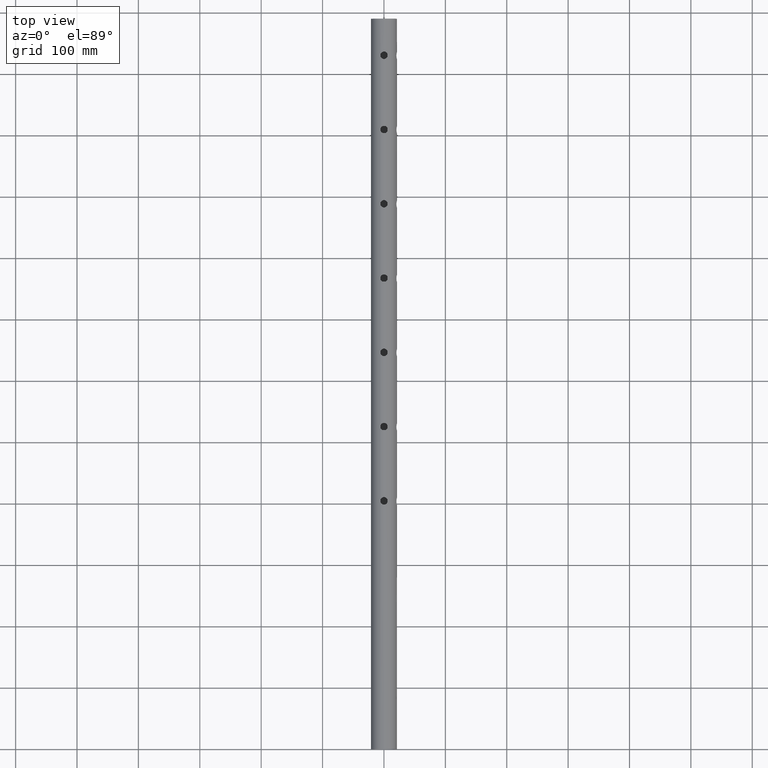
[diagram: clean part render]
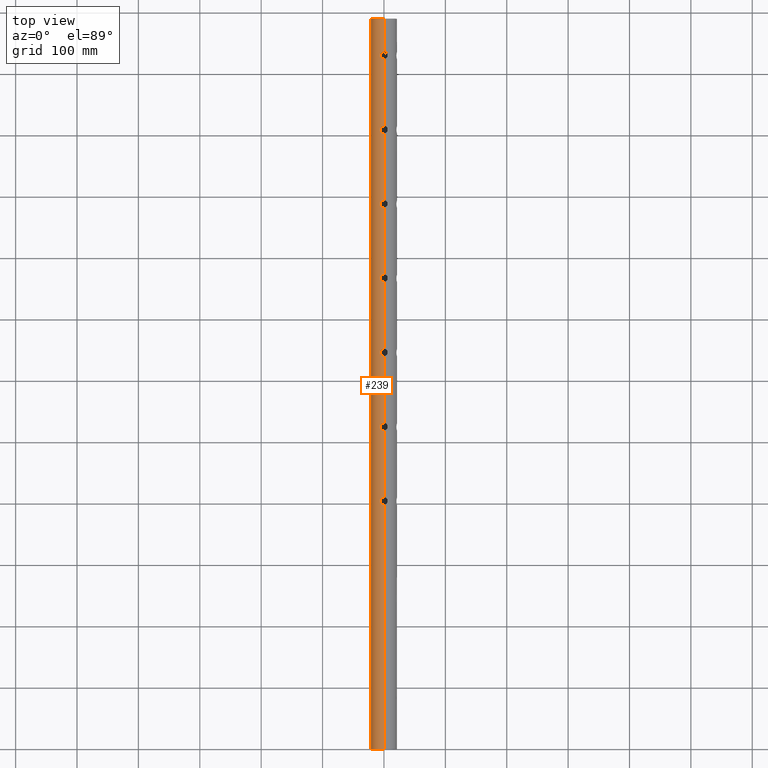
[diagram: same view with one face highlighted and labeled with its STEP entity id]
A machine part, top view. The second image highlights one B-rep face of the part: STEP entity #239.
In plain terms, the highlighted cylindrical surface (edge-blend (fillet) strip) has radius 21.2 mm, axis along (-0, -1, -0).
Its self-contained STEP definition (entity closure, byte-faithful):
#8 = CARTESIAN_POINT ( 'NONE',  ( -3.530176348994277500, 1125.082743648915300, 20.90467695328665300 ) ) ;
#140 = CARTESIAN_POINT ( 'NONE',  ( -5.435294836957286400, 1127.313770727537100, 20.49200384173441200 ) ) ;
#162 = DIRECTION ( 'NONE',  ( -0.0000000000000000000, -1.000000000000000000, -0.0000000000000000000 ) ) ;
#185 = ORIENTED_EDGE ( 'NONE', *, *, #6876, .F. ) ;
#195 = VECTOR ( 'NONE', #9802, 1000.000000000000000 ) ;
#239 = ADVANCED_FACE ( 'NONE', ( #8901 ), #9555, .T. ) ;
#263 = CARTESIAN_POINT ( 'NONE',  ( -2.691164969478768500, 640.5671309157854700, 21.03169333427418400 ) ) ;
#319 = CARTESIAN_POINT ( 'NONE',  ( -3.530176348994261500, 641.0827436489153100, 20.90467695328665300 ) ) ;
#333 = CARTESIAN_POINT ( 'NONE',  ( -5.854683426165408400, 647.5752423035781900, 20.37570154653993300 ) ) ;
#462 = CARTESIAN_POINT ( 'NONE',  ( -3.530176348994277500, 1004.082743648915100, 20.90467695328665300 ) ) ;
#465 = LINE ( 'NONE', #1345, #1800 ) ;
#472 = EDGE_CURVE ( 'NONE', #8128, #1700, #13308, .T. ) ;
#521 = CARTESIAN_POINT ( 'NONE',  ( -4.416944519459525200, 771.1390867482692800, 20.73525746203517200 ) ) ;
#561 = EDGE_CURVE ( 'NONE', #6840, #10485, #5732, .T. ) ;
#565 = CARTESIAN_POINT ( 'NONE',  ( -3.695088032338519600, 529.8066926974905800, 20.87813220728821800 ) ) ;
#573 = CARTESIAN_POINT ( 'NONE',  ( -5.246287615906199500, 770.0385967786834300, 20.54183477648132300 ) ) ;
#578 = CARTESIAN_POINT ( 'NONE',  ( 2.596223314720527500E-015, 894.0499999999999500, 21.19999999999999900 ) ) ;
#585 = CARTESIAN_POINT ( 'NONE',  ( -6.050000000000026500, 403.9999999999998900, 20.31840298842406200 ) ) ;
#622 = CARTESIAN_POINT ( 'NONE',  ( -1.575983268988505200, 519.1453954084810200, 21.14493573380449800 ) ) ;
#624 = CARTESIAN_POINT ( 'NONE',  ( -1.575983268988464300, 398.1453954084810800, 21.14493573380450500 ) ) ;
#654 = CARTESIAN_POINT ( 'NONE',  ( -5.432916495109355800, 527.6917528548796100, 20.49264998027320700 ) ) ;
#659 = VERTEX_POINT ( 'NONE', #10831 ) ;
#660 = EDGE_CURVE ( 'NONE', #2346, #1747, #7364, .T. ) ;
#695 = VECTOR ( 'NONE', #5621, 1000.000000000000000 ) ;
#696 = CARTESIAN_POINT ( 'NONE',  ( -6.000470935930653800, 525.7978770793316700, 20.33309551277983100 ) ) ;
#739 = CARTESIAN_POINT ( 'NONE',  ( -5.249504339499884200, 763.9663222723781900, 20.54104344939931800 ) ) ;
#744 = CARTESIAN_POINT ( 'NONE',  ( -4.918790398416851100, 528.5279635839250400, 20.62178771226464500 ) ) ;
#773 = CARTESIAN_POINT ( 'NONE',  ( -1.962128639602877600, 882.2634081040379200, 21.11218947910312200 ) ) ;
#802 = CARTESIAN_POINT ( 'NONE',  ( -6.039985286317763900, 1130.401044919848300, 20.32139272603728500 ) ) ;
#825 = CARTESIAN_POINT ( 'NONE',  ( -4.141040262045609500, 883.5849413298466300, 20.79210945660207700 ) ) ;
#831 = CARTESIAN_POINT ( 'NONE',  ( -4.141040262045609500, 762.5849413298468600, 20.79210945660207700 ) ) ;
#852 = CARTESIAN_POINT ( 'NONE',  ( -3.039946777223664100, 1135.245635695174500, 20.98353648990999800 ) ) ;
#872 = CARTESIAN_POINT ( 'NONE',  ( -4.801635101803243300, 1012.685894702153100, 20.64947484371207400 ) ) ;
#874 = CARTESIAN_POINT ( 'NONE',  ( -2.691164969478768500, 761.5671309157854700, 21.03169333427418400 ) ) ;
#933 = CARTESIAN_POINT ( 'NONE',  ( -3.039946777223722300, 893.2456356951744300, 20.98353648990999100 ) ) ;
#1028 = CARTESIAN_POINT ( 'NONE',  ( -6.050000000000026500, 645.9999999999997700, 20.31840298842406500 ) ) ;
#1030 = CARTESIAN_POINT ( 'NONE',  ( 2.596223314720527500E-015, 410.0499999999999000, 21.19999999999999900 ) ) ;
#1032 = CARTESIAN_POINT ( 'NONE',  ( -4.556882320858635500, 1126.001105957273500, 20.70639862319530200 ) ) ;
#1038 = CARTESIAN_POINT ( 'NONE',  ( 2.596251214192388800E-015, 1190.000000000000000, 21.19999999999999900 ) ) ;
#1130 = ORIENTED_EDGE ( 'NONE', *, *, #10537, .F. ) ;
#1175 = CARTESIAN_POINT ( 'NONE',  ( -5.855829506274325500, 1128.428586027691200, 20.37537209464103300 ) ) ;
#1215 = CARTESIAN_POINT ( 'NONE',  ( -1.962128639602954000, 1124.263408104038000, 21.11218947910313700 ) ) ;
#1309 = CARTESIAN_POINT ( 'NONE',  ( -0.7973842761982444800, 639.9896508834147000, 21.18858675718902200 ) ) ;
#1345 = CARTESIAN_POINT ( 'NONE',  ( 2.596251214192388800E-015, 1190.000000000000000, 21.19999999999999900 ) ) ;
#1350 = CARTESIAN_POINT ( 'NONE',  ( -6.039985286317761200, 404.4010449198484600, 20.32139272603728100 ) ) ;
#1404 = CARTESIAN_POINT ( 'NONE',  ( -3.995559808259872400, 641.4528021853143400, 20.82065224352272600 ) ) ;
#1447 = EDGE_CURVE ( 'NONE', #6904, #5822, #12035, .T. ) ;
#1452 = CARTESIAN_POINT ( 'NONE',  ( -5.738210485053230100, 644.0426553450870400, 20.40925260374660500 ) ) ;
#1488 = EDGE_CURVE ( 'NONE', #8061, #11822, #6049, .T. ) ;
#1496 = CARTESIAN_POINT ( 'NONE',  ( -0.4018420492009751000, 639.9499999999999300, 21.19999999999999600 ) ) ;
#1510 = CARTESIAN_POINT ( 'NONE',  ( -4.141040262045537500, 1004.584941329846400, 20.79210945660209800 ) ) ;
#1519 = CARTESIAN_POINT ( 'NONE',  ( -1.578362020633712600, 772.8542087607759200, 21.14482399937956500 ) ) ;
#1556 = CARTESIAN_POINT ( 'NONE',  ( -0.3960930939026379700, 773.0499999999997300, 21.19999999999999600 ) ) ;
#1578 = CARTESIAN_POINT ( 'NONE',  ( -6.050000000000026500, 887.9999999999997700, 20.31840298842406500 ) ) ;
#1594 = CARTESIAN_POINT ( 'NONE',  ( -4.918790398416851100, 770.5279635839249300, 20.62178771226464500 ) ) ;
#1615 = VERTEX_POINT ( 'NONE', #4172 ) ;
#1647 = CARTESIAN_POINT ( 'NONE',  ( -0.7973842761982444800, 518.9896508834145800, 21.18858675718902200 ) ) ;
#1700 = VERTEX_POINT ( 'NONE', #2402 ) ;
#1720 = CARTESIAN_POINT ( 'NONE',  ( -3.039946777223722300, 530.2456356951746600, 20.98353648990999100 ) ) ;
#1747 = VERTEX_POINT ( 'NONE', #7472 ) ;
#1762 = CARTESIAN_POINT ( 'NONE',  ( -6.050000000000026500, 766.9999999999997700, 20.31840298842406500 ) ) ;
#1784 = CARTESIAN_POINT ( 'NONE',  ( -4.556882320858705700, 521.0011059572732400, 20.70639862319529800 ) ) ;
#1786 = CARTESIAN_POINT ( 'NONE',  ( -1.956693228108754800, 1135.738442409943400, 21.11269495595366400 ) ) ;
#1800 = VECTOR ( 'NONE', #162, 1000.000000000000000 ) ;
#1810 = CARTESIAN_POINT ( 'NONE',  ( -6.049999999999978500, 887.6012173861108700, 20.31840298842407600 ) ) ;
#1817 = CARTESIAN_POINT ( 'NONE',  ( -4.807465143467418900, 763.3055751110839500, 20.64897190406545800 ) ) ;
#1822 = CARTESIAN_POINT ( 'NONE',  ( -6.050000000000026500, 524.9999999999997700, 20.31840298842406500 ) ) ;
#1833 = CARTESIAN_POINT ( 'NONE',  ( -5.854683426165408400, 768.5752423035783100, 20.37570154653993300 ) ) ;
#1844 = B_SPLINE_CURVE_WITH_KNOTS ( 'NONE', 3,
 ( #5909, #6962, #4033, #1924, #1786, #11358, #852, #7228, #9229, #12464, #4997, #3937, #6081, #9281, #2912, #10374, #3981, #8290, #13571, #802, #11487, #5092 ),
 .UNSPECIFIED., .F., .F.,
 ( 4, 2, 2, 2, 2, 2, 2, 2, 2, 2, 4 ),
 ( 0.01901438074518129900, 0.02020257086482991200, 0.02139076098447852500, 0.02257895110412713700, 0.02376714122377575000, 0.02436123628360005500, 0.02495533134342435900, 0.02614352146307296800, 0.02733171158272158100, 0.02792580664254588500, 0.02851990170237019000 ),
 .UNSPECIFIED. ) ;
#1860 = ORIENTED_EDGE ( 'NONE', *, *, #4938, .F. ) ;
#1880 = ORIENTED_EDGE ( 'NONE', *, *, #8201, .F. ) ;
#1924 = CARTESIAN_POINT ( 'NONE',  ( -1.578362020633681300, 1135.854208760776100, 21.14482399937957200 ) ) ;
#1951 = CARTESIAN_POINT ( 'NONE',  ( -5.739701135709182700, 1010.953956485524600, 20.40884895650809500 ) ) ;
#1968 = CARTESIAN_POINT ( 'NONE',  ( -0.3960930939026379700, 894.0499999999999500, 21.19999999999999600 ) ) ;
#2021 = CARTESIAN_POINT ( 'NONE',  ( -6.049999999999985600, 646.1994294887807700, 20.31840298842406900 ) ) ;
#2023 = DIRECTION ( 'NONE',  ( 0.0000000000000000000, 1.000000000000000000, 0.0000000000000000000 ) ) ;
#2024 = CARTESIAN_POINT ( 'NONE',  ( -5.971067428228664700, 888.9939342792388300, 20.34177933837445100 ) ) ;
#2067 = CARTESIAN_POINT ( 'NONE',  ( -5.854683426165408400, 889.5752423035784200, 20.37570154653993300 ) ) ;
#2094 = CARTESIAN_POINT ( 'NONE',  ( -5.460655415923692100E-014, 1002.950000000000000, 21.19999999999999900 ) ) ;
#2107 = CARTESIAN_POINT ( 'NONE',  ( -6.039985286317756800, 888.4010449198484600, 20.32139272603728100 ) ) ;
#2109 = CARTESIAN_POINT ( 'NONE',  ( -0.4018420492009687800, 1123.950000000000300, 21.19999999999999900 ) ) ;
#2162 = CARTESIAN_POINT ( 'NONE',  ( -4.550975023963515800, 649.9912586658209600, 20.70616181969095500 ) ) ;
#2256 = EDGE_CURVE ( 'NONE', #9644, #6904, #12184, .T. ) ;
#2284 = DIRECTION ( 'NONE',  ( -0.0000000000000000000, -1.000000000000000000, -0.0000000000000000000 ) ) ;
#2316 = ORIENTED_EDGE ( 'NONE', *, *, #2646, .F. ) ;
#2333 = ORIENTED_EDGE ( 'NONE', *, *, #660, .F. ) ;
#2346 = VERTEX_POINT ( 'NONE', #4131 ) ;
#2402 = CARTESIAN_POINT ( 'NONE',  ( 1.017599410026512000E-015, 518.9499999999999300, 21.19999999999999900 ) ) ;
#2428 = CARTESIAN_POINT ( 'NONE',  ( -4.141040262045609500, 641.5849413298465200, 20.79210945660207700 ) ) ;
#2459 = CARTESIAN_POINT ( 'NONE',  ( -6.000470935930661800, 404.7978770793316100, 20.33309551277983500 ) ) ;
#2504 = CARTESIAN_POINT ( 'NONE',  ( -4.918790398416892800, 407.5279635839249900, 20.62178771226464500 ) ) ;
#2572 = CARTESIAN_POINT ( 'NONE',  ( -3.690486255587968100, 1004.201894400434500, 20.87688600400945300 ) ) ;
#2585 = VERTEX_POINT ( 'NONE', #2666 ) ;
#2593 = DIRECTION ( 'NONE',  ( 0.0000000000000000000, 0.0000000000000000000, -1.000000000000000000 ) ) ;
#2619 = CARTESIAN_POINT ( 'NONE',  ( -6.000470935930653800, 646.7978770793315600, 20.33309551277983100 ) ) ;
#2625 = CARTESIAN_POINT ( 'NONE',  ( -0.7926788128932649200, 773.0112101262986900, 21.18882887118840600 ) ) ;
#2646 = EDGE_CURVE ( 'NONE', #1747, #8128, #7304, .T. ) ;
#2665 = CARTESIAN_POINT ( 'NONE',  ( -2.691164969478831100, 1003.567130915785700, 21.03169333427417300 ) ) ;
#2666 = CARTESIAN_POINT ( 'NONE',  ( 2.596223314720527500E-015, 652.0499999999999500, 21.19999999999999900 ) ) ;
#2680 = CARTESIAN_POINT ( 'NONE',  ( -6.050000000000026500, 524.9999999999997700, 20.31840298842406500 ) ) ;
#2714 = CARTESIAN_POINT ( 'NONE',  ( -0.7926788128932649200, 531.0112101262985800, 21.18882887118840600 ) ) ;
#2748 = CARTESIAN_POINT ( 'NONE',  ( 0.0000000000000000000, 1190.000000000000000, 0.0000000000000000000 ) ) ;
#2793 = CARTESIAN_POINT ( 'NONE',  ( -3.690486255588049300, 883.2018944004348700, 20.87688600400944900 ) ) ;
#2803 = CARTESIAN_POINT ( 'NONE',  ( -5.971067428228664700, 525.9939342792387200, 20.34177933837445100 ) ) ;
#2812 = LINE ( 'NONE', #8263, #13171 ) ;
#2841 = CARTESIAN_POINT ( 'NONE',  ( -5.249504339499884200, 884.9663222723780800, 20.54104344939931800 ) ) ;
#2865 = CARTESIAN_POINT ( 'NONE',  ( -3.530176348994261500, 520.0827436489153100, 20.90467695328665300 ) ) ;
#2868 = CARTESIAN_POINT ( 'NONE',  ( 1.017599410026512000E-015, 881.9499999999999300, 21.19999999999999900 ) ) ;
#2912 = CARTESIAN_POINT ( 'NONE',  ( -5.432916495109359400, 1132.691752854880000, 20.49264998027321400 ) ) ;
#2945 = LINE ( 'NONE', #6131, #5965 ) ;
#2946 = CARTESIAN_POINT ( 'NONE',  ( -5.432916495109355800, 769.6917528548797200, 20.49264998027320700 ) ) ;
#3004 = CARTESIAN_POINT ( 'NONE',  ( -0.3960930939026398600, 410.0499999999999500, 21.20000000000000300 ) ) ;
#3043 = CARTESIAN_POINT ( 'NONE',  ( -6.000470935930653800, 888.7978770793314400, 20.33309551277983100 ) ) ;
#3074 = CARTESIAN_POINT ( 'NONE',  ( -3.037534517596386600, 761.7528956210558100, 20.98389950317865500 ) ) ;
#3088 = CARTESIAN_POINT ( 'NONE',  ( -6.050000000000026500, 887.9999999999997700, 20.31840298842406500 ) ) ;
#3167 = EDGE_CURVE ( 'NONE', #13727, #7425, #2812, .T. ) ;
#3215 = CARTESIAN_POINT ( 'NONE',  ( -0.7973842761982444800, 760.9896508834144700, 21.18858675718902200 ) ) ;
#3275 = CARTESIAN_POINT ( 'NONE',  ( -6.010954212363925500, 1129.207213436173300, 20.33014895809900200 ) ) ;
#3391 = LINE ( 'NONE', #6725, #11560 ) ;
#3405 = CARTESIAN_POINT ( 'NONE',  ( -5.249504339499884200, 642.9663222723780800, 20.54104344939931800 ) ) ;
#3425 = CARTESIAN_POINT ( 'NONE',  ( -4.141040262045574000, 399.5849413298468000, 20.79210945660208400 ) ) ;
#3448 = CARTESIAN_POINT ( 'NONE',  ( -6.049999999999978500, 645.6012173861111000, 20.31840298842407600 ) ) ;
#3461 = CARTESIAN_POINT ( 'NONE',  ( -4.918790398416851100, 649.5279635839249300, 20.62178771226464500 ) ) ;
#3506 = DIRECTION ( 'NONE',  ( -0.0000000000000000000, -1.000000000000000000, -0.0000000000000000000 ) ) ;
#3548 = CARTESIAN_POINT ( 'NONE',  ( -1.962128639602877600, 640.2634081040380400, 21.11218947910312200 ) ) ;
#3584 = CARTESIAN_POINT ( 'NONE',  ( -6.050000000000026500, 403.9999999999998900, 20.31840298842406200 ) ) ;
#3609 = CARTESIAN_POINT ( 'NONE',  ( -6.010954212363925500, 1008.207213436173200, 20.33014895809900200 ) ) ;
#3663 = ORIENTED_EDGE ( 'NONE', *, *, #4318, .F. ) ;
#3706 = CARTESIAN_POINT ( 'NONE',  ( -2.685867363320191700, 772.4354839883693600, 21.03237155431430900 ) ) ;
#3711 = CARTESIAN_POINT ( 'NONE',  ( -1.962128639602841700, 398.2634081040382600, 21.11218947910313300 ) ) ;
#3750 = CARTESIAN_POINT ( 'NONE',  ( -4.807465143467418900, 521.3055751110839500, 20.64897190406545800 ) ) ;
#3784 = CARTESIAN_POINT ( 'NONE',  ( -5.246287615906199500, 528.0385967786833100, 20.54183477648132300 ) ) ;
#3789 = VERTEX_POINT ( 'NONE', #8331 ) ;
#3870 = CARTESIAN_POINT ( 'NONE',  ( -5.435294836957286400, 885.3137707275371900, 20.49200384173441200 ) ) ;
#3883 = CARTESIAN_POINT ( 'NONE',  ( -5.971067428228664700, 767.9939342792387200, 20.34177933837445100 ) ) ;
#3913 = CIRCLE ( 'NONE', #6978, 21.19999999999999900 ) ;
#3919 = CARTESIAN_POINT ( 'NONE',  ( -5.738210485053230100, 765.0426553450869300, 20.40925260374660500 ) ) ;
#3937 = CARTESIAN_POINT ( 'NONE',  ( -4.801635101803243300, 1133.685894702153100, 20.64947484371207400 ) ) ;
#3981 = CARTESIAN_POINT ( 'NONE',  ( -5.854683426165435900, 1131.575242303577900, 20.37570154653992200 ) ) ;
#4033 = CARTESIAN_POINT ( 'NONE',  ( -0.7926788128932325000, 1136.011210126298200, 21.18882887118840600 ) ) ;
#4068 = B_SPLINE_CURVE_WITH_KNOTS ( 'NONE', 3,
 ( #11461, #1810, #8220, #6140, #5018, #3870, #2841, #10441, #11420, #825, #13506, #2793, #6100, #7107, #9250, #773, #12393, #13548, #12436, #8179 ),
 .UNSPECIFIED., .F., .F.,
 ( 4, 2, 2, 2, 2, 2, 2, 2, 2, 4 ),
 ( 0.02851990170237044000, 0.02970786433669814900, 0.03089582697102585800, 0.03208378960535356700, 0.03327175223968127600, 0.03386573355684524600, 0.03445971487400921500, 0.03564767750833715300, 0.03683564014266509100, 0.03802360277699302900 ),
 .UNSPECIFIED. ) ;
#4091 = CARTESIAN_POINT ( 'NONE',  ( 2.596223311817519400E-015, 1015.049999999999800, 21.19999999999999900 ) ) ;
#4094 = CARTESIAN_POINT ( 'NONE',  ( 1.017599410026512000E-015, 760.9499999999999300, 21.19999999999999900 ) ) ;
#4131 = CARTESIAN_POINT ( 'NONE',  ( 1.017599410026512000E-015, 639.9499999999999300, 21.19999999999999900 ) ) ;
#4155 = CARTESIAN_POINT ( 'NONE',  ( -5.739701135709177400, 889.9539564855246000, 20.40884895650809100 ) ) ;
#4172 = CARTESIAN_POINT ( 'NONE',  ( 2.596251214192388800E-015, 1190.000000000000000, 21.19999999999999900 ) ) ;
#4199 = CARTESIAN_POINT ( 'NONE',  ( -3.695088032338519600, 892.8066926974903500, 20.87813220728821800 ) ) ;
#4318 = EDGE_CURVE ( 'NONE', #10733, #13727, #7819, .T. ) ;
#4343 = CARTESIAN_POINT ( 'NONE',  ( -2.691164969478831100, 1124.567130915785800, 21.03169333427417300 ) ) ;
#4430 = EDGE_LOOP ( 'NONE', ( #5657, #7576, #7858, #12914, #13153, #185, #11520, #1880, #4935, #2316, #2333, #11976, #1130, #6951, #13337, #1860, #11939, #12461, #8386, #8965, #8389, #7737, #12580, #3663, #5795 ) ) ;
#4469 = CARTESIAN_POINT ( 'NONE',  ( -6.050000000000026500, 645.9999999999997700, 20.31840298842406500 ) ) ;
#4548 = CARTESIAN_POINT ( 'NONE',  ( -5.971067428228684200, 404.9939342792387700, 20.34177933837445800 ) ) ;
#4629 = CARTESIAN_POINT ( 'NONE',  ( -4.807465143467372700, 400.3055751110836700, 20.64897190406546200 ) ) ;
#4756 = CARTESIAN_POINT ( 'NONE',  ( -3.039946777223722300, 772.2456356951746600, 20.98353648990999100 ) ) ;
#4877 = VERTEX_POINT ( 'NONE', #11256 ) ;
#4885 = CARTESIAN_POINT ( 'NONE',  ( -3.998291510288320500, 529.5576218567899800, 20.82150015292442200 ) ) ;
#4935 = ORIENTED_EDGE ( 'NONE', *, *, #472, .F. ) ;
#4938 = EDGE_CURVE ( 'NONE', #11492, #3789, #6373, .T. ) ;
#4975 = CARTESIAN_POINT ( 'NONE',  ( -6.000470935930668000, 1009.797877079331200, 20.33309551277982400 ) ) ;
#4983 = CARTESIAN_POINT ( 'NONE',  ( -2.685867363320191700, 530.4354839883692400, 21.03237155431430900 ) ) ;
#4997 = CARTESIAN_POINT ( 'NONE',  ( -4.550975023963519400, 1133.991258665820900, 20.70616181969095500 ) ) ;
#5018 = CARTESIAN_POINT ( 'NONE',  ( -5.738210485053230100, 886.0426553450869300, 20.40925260374660500 ) ) ;
#5024 = CARTESIAN_POINT ( 'NONE',  ( 2.596251214192388800E-015, 1190.000000000000000, 21.19999999999999900 ) ) ;
#5063 = CARTESIAN_POINT ( 'NONE',  ( 2.596223314720527500E-015, 773.0499999999999500, 21.19999999999999900 ) ) ;
#5064 = CARTESIAN_POINT ( 'NONE',  ( -4.416944519459541100, 1013.139086748269300, 20.73525746203516500 ) ) ;
#5092 = CARTESIAN_POINT ( 'NONE',  ( -6.050000000000026500, 1130.000000000000000, 20.31840298842406200 ) ) ;
#5115 = CARTESIAN_POINT ( 'NONE',  ( -1.956693228108754800, 1014.738442409943200, 21.11269495595366400 ) ) ;
#5165 = CARTESIAN_POINT ( 'NONE',  ( -5.432916495109359400, 1011.691752854879800, 20.49264998027321400 ) ) ;
#5186 = CARTESIAN_POINT ( 'NONE',  ( -5.432916495109355800, 890.6917528548796100, 20.49264998027320700 ) ) ;
#5220 = CARTESIAN_POINT ( 'NONE',  ( -1.575983268988505200, 761.1453954084811400, 21.14493573380449800 ) ) ;
#5236 = CARTESIAN_POINT ( 'NONE',  ( -1.956693228108747000, 409.7384424099435000, 21.11269495595366400 ) ) ;
#5285 = CARTESIAN_POINT ( 'NONE',  ( -4.416944519459525200, 892.1390867482695100, 20.73525746203517200 ) ) ;
#5308 = VERTEX_POINT ( 'NONE', #7872 ) ;
#5366 = DIRECTION ( 'NONE',  ( -0.0000000000000000000, -1.000000000000000000, -0.0000000000000000000 ) ) ;
#5390 = CARTESIAN_POINT ( 'NONE',  ( -4.807465143467353200, 1126.305575111084000, 20.64897190406547300 ) ) ;
#5568 = CARTESIAN_POINT ( 'NONE',  ( -3.690486255588049300, 641.2018944004347500, 20.87688600400944900 ) ) ;
#5592 = CARTESIAN_POINT ( 'NONE',  ( -5.738210485053228300, 402.0426553450869800, 20.40925260374660500 ) ) ;
#5616 = B_SPLINE_CURVE_WITH_KNOTS ( 'NONE', 3,
 ( #5769, #11110, #3609, #12094, #8910, #13223, #6825, #6869, #7880, #1510, #8950, #2572, #462, #5978, #2665, #10220, #11247, #12312, #7035, #10128 ),
 .UNSPECIFIED., .F., .F.,
 ( 4, 2, 2, 2, 2, 2, 2, 2, 2, 4 ),
 ( 0.02851990170237019000, 0.02970786433669800300, 0.03089582697102581700, 0.03208378960535363000, 0.03327175223968144300, 0.03386573355684535000, 0.03445971487400925600, 0.03564767750833706900, 0.03683564014266488300, 0.03802360277699269600 ),
 .UNSPECIFIED. ) ;
#5621 = DIRECTION ( 'NONE',  ( -0.0000000000000000000, -1.000000000000000000, -0.0000000000000000000 ) ) ;
#5657 = ORIENTED_EDGE ( 'NONE', *, *, #13440, .F. ) ;
#5665 = CARTESIAN_POINT ( 'NONE',  ( -5.855829506274332600, 644.4285860276912700, 20.37537209464102300 ) ) ;
#5702 = CARTESIAN_POINT ( 'NONE',  ( -4.801635101803206000, 407.6858947021535200, 20.64947484371208800 ) ) ;
#5707 = LINE ( 'NONE', #10424, #10024 ) ;
#5732 = LINE ( 'NONE', #1038, #195 ) ;
#5756 = EDGE_CURVE ( 'NONE', #10590, #2346, #12111, .T. ) ;
#5760 = CARTESIAN_POINT ( 'NONE',  ( -6.050000000000026500, 1130.000000000000000, 20.31840298842406200 ) ) ;
#5769 = CARTESIAN_POINT ( 'NONE',  ( -6.050000000000026500, 1008.999999999999900, 20.31840298842406200 ) ) ;
#5781 = CARTESIAN_POINT ( 'NONE',  ( -5.855829506274334400, 402.4285860276913800, 20.37537209464103000 ) ) ;
#5795 = ORIENTED_EDGE ( 'NONE', *, *, #6953, .F. ) ;
#5822 = VERTEX_POINT ( 'NONE', #1578 ) ;
#5869 = EDGE_CURVE ( 'NONE', #5822, #8306, #4068, .T. ) ;
#5906 = CARTESIAN_POINT ( 'NONE',  ( -3.995559808259872400, 520.4528021853144500, 20.82065224352272600 ) ) ;
#5909 = CARTESIAN_POINT ( 'NONE',  ( 2.596223311817519400E-015, 1136.049999999999700, 21.19999999999999900 ) ) ;
#5965 = VECTOR ( 'NONE', #9236, 1000.000000000000000 ) ;
#5978 = CARTESIAN_POINT ( 'NONE',  ( -3.037534517596409700, 1003.752895621055900, 20.98389950317865500 ) ) ;
#5993 = CARTESIAN_POINT ( 'NONE',  ( -5.855829506274332600, 523.4285860276912700, 20.37537209464102300 ) ) ;
#5999 = CARTESIAN_POINT ( 'NONE',  ( -3.039946777223722300, 651.2456356951745400, 20.98353648990999100 ) ) ;
#6031 = CARTESIAN_POINT ( 'NONE',  ( -1.578362020633712600, 530.8542087607756900, 21.14482399937956500 ) ) ;
#6049 = B_SPLINE_CURVE_WITH_KNOTS ( 'NONE', 3,
 ( #1030, #3004, #6208, #10640, #5236, #6167, #13665, #12661, #7266, #8336, #7809, #5702, #2504, #8695, #8783, #7753, #11968, #4548, #2459, #1350, #8732, #3584 ),
 .UNSPECIFIED., .F., .F.,
 ( 4, 2, 2, 2, 2, 2, 2, 2, 2, 2, 4 ),
 ( 0.01901438074518154600, 0.02020257086483030100, 0.02139076098447905600, 0.02257895110412781000, 0.02376714122377656900, 0.02436123628360088700, 0.02495533134342520900, 0.02614352146307371400, 0.02733171158272221900, 0.02792580664254638900, 0.02851990170237056100 ),
 .UNSPECIFIED. ) ;
#6078 = CARTESIAN_POINT ( 'NONE',  ( -1.962128639602877600, 519.2634081040380400, 21.11218947910312200 ) ) ;
#6081 = CARTESIAN_POINT ( 'NONE',  ( -4.918790398416980700, 1133.527963583924700, 20.62178771226462000 ) ) ;
#6100 = CARTESIAN_POINT ( 'NONE',  ( -3.530176348994261500, 883.0827436489153100, 20.90467695328665300 ) ) ;
#6103 = CARTESIAN_POINT ( 'NONE',  ( -3.995559808259872400, 762.4528021853145700, 20.82065224352272600 ) ) ;
#6131 = CARTESIAN_POINT ( 'NONE',  ( 2.596251214192388800E-015, 1190.000000000000000, 21.19999999999999900 ) ) ;
#6140 = CARTESIAN_POINT ( 'NONE',  ( -5.855829506274332600, 886.4285860276912700, 20.37537209464102300 ) ) ;
#6146 = CARTESIAN_POINT ( 'NONE',  ( -6.049999999999982100, 1009.199429488781100, 20.31840298842406900 ) ) ;
#6149 = CARTESIAN_POINT ( 'NONE',  ( -6.010954212363919200, 766.2072134361733300, 20.33014895809900600 ) ) ;
#6167 = CARTESIAN_POINT ( 'NONE',  ( -2.685867363320207700, 409.4354839883689000, 21.03237155431429500 ) ) ;
#6197 = CARTESIAN_POINT ( 'NONE',  ( -4.550975023963519400, 1012.991258665821200, 20.70616181969095500 ) ) ;
#6198 = DIRECTION ( 'NONE',  ( -0.0000000000000000000, -1.000000000000000000, -0.0000000000000000000 ) ) ;
#6208 = CARTESIAN_POINT ( 'NONE',  ( -0.7926788128932501500, 410.0112101262984700, 21.18882887118840200 ) ) ;
#6235 = CARTESIAN_POINT ( 'NONE',  ( -5.971067428228684200, 1009.993934279238800, 20.34177933837445100 ) ) ;
#6277 = AXIS2_PLACEMENT_3D ( 'NONE', #8892, #10993, #2593 ) ;
#6304 = CARTESIAN_POINT ( 'NONE',  ( 2.596223314720527500E-015, 894.0499999999999500, 21.19999999999999900 ) ) ;
#6350 = CARTESIAN_POINT ( 'NONE',  ( -1.956693228108736100, 893.7384424099435600, 21.11269495595367500 ) ) ;
#6353 = CARTESIAN_POINT ( 'NONE',  ( -6.049999999999984700, 1129.601217386111600, 20.31840298842407600 ) ) ;
#6360 = CARTESIAN_POINT ( 'NONE',  ( -4.416944519459525200, 650.1390867482691600, 20.73525746203517200 ) ) ;
#6373 = B_SPLINE_CURVE_WITH_KNOTS ( 'NONE', 3,
 ( #11071, #1556, #2625, #1519, #10090, #3706, #4756, #12232, #13305, #521, #7973, #10136, #1594, #573, #2946, #10320, #1833, #3883, #12370, #11352, #9320, #12509 ),
 .UNSPECIFIED., .F., .F.,
 ( 4, 2, 2, 2, 2, 2, 2, 2, 2, 2, 4 ),
 ( 0.01901438074518146300, 0.02020257086483026300, 0.02139076098447906200, 0.02257895110412786200, 0.02376714122377666200, 0.02436123628360094600, 0.02495533134342523000, 0.02614352146307352700, 0.02733171158272182000, 0.02792580664254613200, 0.02851990170237044000 ),
 .UNSPECIFIED. ) ;
#6446 = CARTESIAN_POINT ( 'NONE',  ( -4.801635101803244200, 649.6858947021531800, 20.64947484371208100 ) ) ;
#6463 = B_SPLINE_CURVE_WITH_KNOTS ( 'NONE', 3,
 ( #1762, #8095, #6149, #10304, #3919, #7115, #739, #1817, #9259, #831, #6103, #13595, #11654, #3074, #874, #12776, #5220, #3215, #12692, #4094 ),
 .UNSPECIFIED., .F., .F.,
 ( 4, 2, 2, 2, 2, 2, 2, 2, 2, 4 ),
 ( 0.02851990170237044000, 0.02970786433669814900, 0.03089582697102585800, 0.03208378960535356700, 0.03327175223968127600, 0.03386573355684524600, 0.03445971487400921500, 0.03564767750833715300, 0.03683564014266509100, 0.03802360277699302900 ),
 .UNSPECIFIED. ) ;
#6535 = CARTESIAN_POINT ( 'NONE',  ( -5.738210485053230900, 1128.042655345087000, 20.40925260374660900 ) ) ;
#6676 = CARTESIAN_POINT ( 'NONE',  ( -5.435294836957286400, 643.3137707275371900, 20.49200384173441200 ) ) ;
#6722 = CARTESIAN_POINT ( 'NONE',  ( -4.807465143467418900, 642.3055751110839500, 20.64897190406545800 ) ) ;
#6725 = CARTESIAN_POINT ( 'NONE',  ( 0.0000000000000000000, 1190.000000000000000, -21.19999999999999900 ) ) ;
#6784 = CARTESIAN_POINT ( 'NONE',  ( 2.596223311817519400E-015, 1136.049999999999700, 21.19999999999999900 ) ) ;
#6825 = CARTESIAN_POINT ( 'NONE',  ( -5.249504339499842400, 1005.966322272377900, 20.54104344939933200 ) ) ;
#6839 = CARTESIAN_POINT ( 'NONE',  ( -4.556882320858670200, 400.0011059572731300, 20.70639862319529800 ) ) ;
#6840 = VERTEX_POINT ( 'NONE', #10012 ) ;
#6869 = CARTESIAN_POINT ( 'NONE',  ( -4.807465143467353200, 1005.305575111084000, 20.64897190406547300 ) ) ;
#6876 = EDGE_CURVE ( 'NONE', #11822, #6840, #12011, .T. ) ;
#6879 = CARTESIAN_POINT ( 'NONE',  ( -0.7973842761982009600, 397.9896508834145800, 21.18858675718902200 ) ) ;
#6904 = VERTEX_POINT ( 'NONE', #578 ) ;
#6922 = CARTESIAN_POINT ( 'NONE',  ( -0.4018420492009774400, 397.9499999999998200, 21.19999999999998900 ) ) ;
#6951 = ORIENTED_EDGE ( 'NONE', *, *, #11900, .F. ) ;
#6953 = EDGE_CURVE ( 'NONE', #12192, #10733, #1844, .T. ) ;
#6961 = CARTESIAN_POINT ( 'NONE',  ( -5.738210485053230100, 523.0426553450870400, 20.40925260374660500 ) ) ;
#6962 = CARTESIAN_POINT ( 'NONE',  ( -0.3960930939026450200, 1136.050000000000000, 21.19999999999999900 ) ) ;
#6978 = AXIS2_PLACEMENT_3D ( 'NONE', #10413, #2023, #7315 ) ;
#7006 = CARTESIAN_POINT ( 'NONE',  ( -2.691164969478768500, 519.5671309157855800, 21.03169333427418400 ) ) ;
#7035 = CARTESIAN_POINT ( 'NONE',  ( -0.4018420492009687800, 1002.950000000000000, 21.19999999999999900 ) ) ;
#7036 = CARTESIAN_POINT ( 'NONE',  ( -1.956693228108736100, 530.7384424099435600, 21.11269495595367500 ) ) ;
#7069 = CARTESIAN_POINT ( 'NONE',  ( -5.739701135709177400, 526.9539564855247100, 20.40884895650809100 ) ) ;
#7107 = CARTESIAN_POINT ( 'NONE',  ( -3.037534517596386600, 882.7528956210559300, 20.98389950317865500 ) ) ;
#7113 = CARTESIAN_POINT ( 'NONE',  ( -6.050000000000026500, 1008.999999999999900, 20.31840298842406200 ) ) ;
#7115 = CARTESIAN_POINT ( 'NONE',  ( -5.435294836957286400, 764.3137707275374200, 20.49200384173441200 ) ) ;
#7165 = CARTESIAN_POINT ( 'NONE',  ( -6.039985286317763900, 1009.401044919848700, 20.32139272603728500 ) ) ;
#7228 = CARTESIAN_POINT ( 'NONE',  ( -3.695088032338476900, 1134.806692697490500, 20.87813220728822100 ) ) ;
#7246 = EDGE_CURVE ( 'NONE', #10358, #9644, #5616, .T. ) ;
#7250 = CARTESIAN_POINT ( 'NONE',  ( -3.039946777223664100, 1014.245635695174500, 20.98353648990999800 ) ) ;
#7266 = CARTESIAN_POINT ( 'NONE',  ( -3.998291510288358700, 408.5576218567900400, 20.82150015292442900 ) ) ;
#7304 = B_SPLINE_CURVE_WITH_KNOTS ( 'NONE', 3,
 ( #13516, #13346, #2714, #6031, #7036, #4983, #1720, #565, #4885, #12402, #12365, #9166, #744, #3784, #654, #7069, #13426, #2803, #696, #8097, #12264, #1822 ),
 .UNSPECIFIED., .F., .F.,
 ( 4, 2, 2, 2, 2, 2, 2, 2, 2, 2, 4 ),
 ( 0.01901438074518146300, 0.02020257086483026300, 0.02139076098447906200, 0.02257895110412786200, 0.02376714122377666200, 0.02436123628360094600, 0.02495533134342523000, 0.02614352146307352700, 0.02733171158272182000, 0.02792580664254613200, 0.02851990170237044000 ),
 .UNSPECIFIED. ) ;
#7315 = DIRECTION ( 'NONE',  ( 0.0000000000000000000, 0.0000000000000000000, 1.000000000000000000 ) ) ;
#7361 = CARTESIAN_POINT ( 'NONE',  ( -5.246287615906199500, 891.0385967786833100, 20.54183477648132300 ) ) ;
#7364 = LINE ( 'NONE', #11992, #695 ) ;
#7401 = CARTESIAN_POINT ( 'NONE',  ( -6.050000000000026500, 645.9999999999997700, 20.31840298842406500 ) ) ;
#7425 = VERTEX_POINT ( 'NONE', #8792 ) ;
#7472 = CARTESIAN_POINT ( 'NONE',  ( 2.596223314720527500E-015, 531.0499999999999500, 21.19999999999999900 ) ) ;
#7509 = CARTESIAN_POINT ( 'NONE',  ( -4.141040262045537500, 1125.584941329846700, 20.79210945660209800 ) ) ;
#7576 = ORIENTED_EDGE ( 'NONE', *, *, #12445, .F. ) ;
#7587 = CARTESIAN_POINT ( 'NONE',  ( -5.249504339499842400, 1126.966322272377700, 20.54104344939933200 ) ) ;
#7703 = CARTESIAN_POINT ( 'NONE',  ( -3.995559808259827200, 399.4528021853142300, 20.82065224352273000 ) ) ;
#7721 = CARTESIAN_POINT ( 'NONE',  ( -4.556882320858705700, 642.0011059572732400, 20.70639862319529800 ) ) ;
#7737 = ORIENTED_EDGE ( 'NONE', *, *, #12555, .F. ) ;
#7753 = CARTESIAN_POINT ( 'NONE',  ( -5.739701135709176500, 405.9539564855246000, 20.40884895650810500 ) ) ;
#7809 = CARTESIAN_POINT ( 'NONE',  ( -4.550975023963477600, 407.9912586658211400, 20.70616181969096600 ) ) ;
#7819 = B_SPLINE_CURVE_WITH_KNOTS ( 'NONE', 3,
 ( #12944, #6353, #3275, #1175, #6535, #140, #7587, #5390, #1032, #7509, #10781, #12899, #8, #13810, #4343, #1215, #8480, #9612, #2109, #9711 ),
 .UNSPECIFIED., .F., .F.,
 ( 4, 2, 2, 2, 2, 2, 2, 2, 2, 4 ),
 ( 0.02851990170237019000, 0.02970786433669800300, 0.03089582697102581700, 0.03208378960535363000, 0.03327175223968144300, 0.03386573355684535000, 0.03445971487400925600, 0.03564767750833706900, 0.03683564014266488300, 0.03802360277699269600 ),
 .UNSPECIFIED. ) ;
#7858 = ORIENTED_EDGE ( 'NONE', *, *, #13189, .T. ) ;
#7872 = CARTESIAN_POINT ( 'NONE',  ( 0.0000000000000000000, 1190.000000000000000, -21.19999999999999900 ) ) ;
#7880 = CARTESIAN_POINT ( 'NONE',  ( -4.556882320858635500, 1005.001105957273200, 20.70639862319530200 ) ) ;
#7935 = CARTESIAN_POINT ( 'NONE',  ( -3.998291510288320500, 650.5576218567898600, 20.82150015292442200 ) ) ;
#7973 = CARTESIAN_POINT ( 'NONE',  ( -4.550975023963515800, 770.9912586658210800, 20.70616181969095500 ) ) ;
#8028 = CARTESIAN_POINT ( 'NONE',  ( -3.690486255588049300, 520.2018944004346400, 20.87688600400944900 ) ) ;
#8061 = VERTEX_POINT ( 'NONE', #9006 ) ;
#8095 = CARTESIAN_POINT ( 'NONE',  ( -6.049999999999978500, 766.6012173861108700, 20.31840298842407600 ) ) ;
#8097 = CARTESIAN_POINT ( 'NONE',  ( -6.039985286317756800, 525.4010449198486900, 20.32139272603728100 ) ) ;
#8128 = VERTEX_POINT ( 'NONE', #12098 ) ;
#8158 = CARTESIAN_POINT ( 'NONE',  ( -6.010954212363919200, 524.2072134361733300, 20.33014895809900600 ) ) ;
#8162 = VECTOR ( 'NONE', #2284, 1000.000000000000000 ) ;
#8179 = CARTESIAN_POINT ( 'NONE',  ( 1.017599410026512000E-015, 881.9499999999999300, 21.19999999999999900 ) ) ;
#8201 = EDGE_CURVE ( 'NONE', #1700, #8061, #10184, .T. ) ;
#8220 = CARTESIAN_POINT ( 'NONE',  ( -6.010954212363919200, 887.2072134361733300, 20.33014895809900600 ) ) ;
#8263 = CARTESIAN_POINT ( 'NONE',  ( 2.596251214192388800E-015, 1190.000000000000000, 21.19999999999999900 ) ) ;
#8290 = CARTESIAN_POINT ( 'NONE',  ( -5.971067428228684200, 1130.993934279239100, 20.34177933837445100 ) ) ;
#8306 = VERTEX_POINT ( 'NONE', #2868 ) ;
#8316 = CARTESIAN_POINT ( 'NONE',  ( -5.246287615906315000, 1012.038596778683500, 20.54183477648129100 ) ) ;
#8331 = CARTESIAN_POINT ( 'NONE',  ( -6.050000000000026500, 766.9999999999997700, 20.31840298842406500 ) ) ;
#8336 = CARTESIAN_POINT ( 'NONE',  ( -4.416944519459558000, 408.1390867482694500, 20.73525746203517500 ) ) ;
#8380 = CARTESIAN_POINT ( 'NONE',  ( -4.918790398416851100, 891.5279635839249300, 20.62178771226464500 ) ) ;
#8382 = EDGE_CURVE ( 'NONE', #8306, #11492, #5707, .T. ) ;
#8386 = ORIENTED_EDGE ( 'NONE', *, *, #1447, .F. ) ;
#8389 = ORIENTED_EDGE ( 'NONE', *, *, #7246, .F. ) ;
#8476 = CARTESIAN_POINT ( 'NONE',  ( -4.550975023963515800, 891.9912586658209600, 20.70616181969095500 ) ) ;
#8480 = CARTESIAN_POINT ( 'NONE',  ( -1.575983268988494300, 1124.145395408481100, 21.14493573380449800 ) ) ;
#8695 = CARTESIAN_POINT ( 'NONE',  ( -5.246287615906230600, 407.0385967786836000, 20.54183477648131300 ) ) ;
#8732 = CARTESIAN_POINT ( 'NONE',  ( -6.049999999999989200, 404.1994294887811600, 20.31840298842407900 ) ) ;
#8774 = CARTESIAN_POINT ( 'NONE',  ( -3.690486255587999100, 399.2018944004346400, 20.87688600400945300 ) ) ;
#8783 = CARTESIAN_POINT ( 'NONE',  ( -5.432916495109359400, 406.6917528548796100, 20.49264998027320700 ) ) ;
#8792 = CARTESIAN_POINT ( 'NONE',  ( 2.596223311817519400E-015, 1015.049999999999800, 21.19999999999999900 ) ) ;
#8883 = CARTESIAN_POINT ( 'NONE',  ( -6.049999999999982900, 403.6012173861112200, 20.31840298842408300 ) ) ;
#8892 = CARTESIAN_POINT ( 'NONE',  ( 0.0000000000000000000, 1190.000000000000000, 0.0000000000000000000 ) ) ;
#8901 = FACE_OUTER_BOUND ( 'NONE', #4430, .T. ) ;
#8910 = CARTESIAN_POINT ( 'NONE',  ( -5.738210485053230900, 1007.042655345087000, 20.40925260374660900 ) ) ;
#8950 = CARTESIAN_POINT ( 'NONE',  ( -3.995559808259795200, 1004.452802185314100, 20.82065224352274400 ) ) ;
#8965 = ORIENTED_EDGE ( 'NONE', *, *, #2256, .F. ) ;
#9006 = CARTESIAN_POINT ( 'NONE',  ( 2.596223314720527500E-015, 410.0499999999999000, 21.19999999999999900 ) ) ;
#9090 = CARTESIAN_POINT ( 'NONE',  ( -0.4018420492009751000, 518.9499999999999300, 21.19999999999999600 ) ) ;
#9166 = CARTESIAN_POINT ( 'NONE',  ( -4.801635101803244200, 528.6858947021532900, 20.64947484371208100 ) ) ;
#9209 = DIRECTION ( 'NONE',  ( 0.0000000000000000000, 0.0000000000000000000, 1.000000000000000000 ) ) ;
#9227 = CARTESIAN_POINT ( 'NONE',  ( -4.141040262045609500, 520.5849413298468600, 20.79210945660207700 ) ) ;
#9229 = CARTESIAN_POINT ( 'NONE',  ( -3.998291510288341400, 1134.557621856789600, 20.82150015292442200 ) ) ;
#9236 = DIRECTION ( 'NONE',  ( -0.0000000000000000000, -1.000000000000000000, -0.0000000000000000000 ) ) ;
#9250 = CARTESIAN_POINT ( 'NONE',  ( -2.691164969478768500, 882.5671309157854700, 21.03169333427418400 ) ) ;
#9259 = CARTESIAN_POINT ( 'NONE',  ( -4.556882320858705700, 763.0011059572733500, 20.70639862319529800 ) ) ;
#9281 = CARTESIAN_POINT ( 'NONE',  ( -5.246287615906315000, 1133.038596778683300, 20.54183477648129100 ) ) ;
#9305 = CARTESIAN_POINT ( 'NONE',  ( -4.918790398416980700, 1012.527963583925000, 20.62178771226462000 ) ) ;
#9320 = CARTESIAN_POINT ( 'NONE',  ( -6.049999999999985600, 767.1994294887806500, 20.31840298842406900 ) ) ;
#9366 = CARTESIAN_POINT ( 'NONE',  ( -4.801635101803244200, 891.6858947021534000, 20.64947484371208100 ) ) ;
#9396 = CARTESIAN_POINT ( 'NONE',  ( -3.695088032338476900, 1013.806692697490200, 20.87813220728822100 ) ) ;
#9413 = CARTESIAN_POINT ( 'NONE',  ( -1.578362020633712600, 893.8542087607754600, 21.14482399937956500 ) ) ;
#9463 = CARTESIAN_POINT ( 'NONE',  ( -2.685867363320191700, 893.4354839883691300, 21.03237155431430900 ) ) ;
#9537 = B_SPLINE_CURVE_WITH_KNOTS ( 'NONE', 3,
 ( #10240, #11313, #12379, #10279, #13359, #12333, #5999, #13279, #7935, #6360, #2162, #6446, #3461, #9899, #9718, #12950, #333, #12142, #2619, #13661, #2021, #1028 ),
 .UNSPECIFIED., .F., .F.,
 ( 4, 2, 2, 2, 2, 2, 2, 2, 2, 2, 4 ),
 ( 0.01901438074518146300, 0.02020257086483026300, 0.02139076098447906200, 0.02257895110412786200, 0.02376714122377666200, 0.02436123628360094600, 0.02495533134342523000, 0.02614352146307352700, 0.02733171158272182000, 0.02792580664254613200, 0.02851990170237044000 ),
 .UNSPECIFIED. ) ;
#9555 = CYLINDRICAL_SURFACE ( 'NONE', #6277, 21.19999999999999900 ) ;
#9612 = CARTESIAN_POINT ( 'NONE',  ( -0.7973842761982407000, 1123.989650883414900, 21.18858675718902500 ) ) ;
#9644 = VERTEX_POINT ( 'NONE', #2094 ) ;
#9711 = CARTESIAN_POINT ( 'NONE',  ( -5.460655415923692100E-014, 1123.950000000000000, 21.19999999999999900 ) ) ;
#9718 = CARTESIAN_POINT ( 'NONE',  ( -5.432916495109355800, 648.6917528548797200, 20.49264998027320700 ) ) ;
#9802 = DIRECTION ( 'NONE',  ( -0.0000000000000000000, -1.000000000000000000, -0.0000000000000000000 ) ) ;
#9899 = CARTESIAN_POINT ( 'NONE',  ( -5.246287615906199500, 649.0385967786834300, 20.54183477648132300 ) ) ;
#10012 = CARTESIAN_POINT ( 'NONE',  ( 1.920803273262850400E-014, 397.9499999999999300, 21.19999999999999900 ) ) ;
#10024 = VECTOR ( 'NONE', #12568, 1000.000000000000000 ) ;
#10090 = CARTESIAN_POINT ( 'NONE',  ( -1.956693228108736100, 772.7384424099435600, 21.11269495595367500 ) ) ;
#10128 = CARTESIAN_POINT ( 'NONE',  ( -5.460655415923692100E-014, 1002.950000000000000, 21.19999999999999900 ) ) ;
#10136 = CARTESIAN_POINT ( 'NONE',  ( -4.801635101803244200, 770.6858947021532900, 20.64947484371208100 ) ) ;
#10140 = CARTESIAN_POINT ( 'NONE',  ( -5.435294836957286400, 522.3137707275371900, 20.49200384173441200 ) ) ;
#10184 = LINE ( 'NONE', #10774, #8162 ) ;
#10216 = DIRECTION ( 'NONE',  ( 0.0000000000000000000, 1.000000000000000000, 0.0000000000000000000 ) ) ;
#10220 = CARTESIAN_POINT ( 'NONE',  ( -1.962128639602954000, 1003.263408104038100, 21.11218947910313700 ) ) ;
#10240 = CARTESIAN_POINT ( 'NONE',  ( 2.596223314720527500E-015, 652.0499999999999500, 21.19999999999999900 ) ) ;
#10279 = CARTESIAN_POINT ( 'NONE',  ( -1.578362020633712600, 651.8542087607756900, 21.14482399937956500 ) ) ;
#10304 = CARTESIAN_POINT ( 'NONE',  ( -5.855829506274332600, 765.4285860276912700, 20.37537209464102300 ) ) ;
#10320 = CARTESIAN_POINT ( 'NONE',  ( -5.739701135709177400, 768.9539564855246000, 20.40884895650809100 ) ) ;
#10325 = CARTESIAN_POINT ( 'NONE',  ( -3.037534517596386600, 519.7528956210559300, 20.98389950317865500 ) ) ;
#10358 = VERTEX_POINT ( 'NONE', #12545 ) ;
#10371 = EDGE_CURVE ( 'NONE', #3789, #4877, #6463, .T. ) ;
#10374 = CARTESIAN_POINT ( 'NONE',  ( -5.739701135709182700, 1131.953956485524500, 20.40884895650809500 ) ) ;
#10413 = CARTESIAN_POINT ( 'NONE',  ( 0.0000000000000000000, 0.0000000000000000000, 0.0000000000000000000 ) ) ;
#10424 = CARTESIAN_POINT ( 'NONE',  ( 2.596251214192388800E-015, 1190.000000000000000, 21.19999999999999900 ) ) ;
#10441 = CARTESIAN_POINT ( 'NONE',  ( -4.807465143467418900, 884.3055751110840700, 20.64897190406545800 ) ) ;
#10459 = CARTESIAN_POINT ( 'NONE',  ( -0.7926788128932649200, 894.0112101262984700, 21.18882887118840600 ) ) ;
#10485 = VERTEX_POINT ( 'NONE', #12538 ) ;
#10486 = B_SPLINE_CURVE_WITH_KNOTS ( 'NONE', 3,
 ( #4091, #12543, #11553, #13696, #5115, #12592, #7250, #9396, #13552, #5064, #6197, #872, #9305, #8316, #5165, #1951, #12643, #6235, #4975, #7165, #6146, #7113 ),
 .UNSPECIFIED., .F., .F.,
 ( 4, 2, 2, 2, 2, 2, 2, 2, 2, 2, 4 ),
 ( 0.01901438074518129900, 0.02020257086482991200, 0.02139076098447852500, 0.02257895110412713700, 0.02376714122377575000, 0.02436123628360005500, 0.02495533134342435900, 0.02614352146307296800, 0.02733171158272158100, 0.02792580664254588500, 0.02851990170237019000 ),
 .UNSPECIFIED. ) ;
#10537 = EDGE_CURVE ( 'NONE', #2585, #10590, #9537, .T. ) ;
#10590 = VERTEX_POINT ( 'NONE', #7401 ) ;
#10640 = CARTESIAN_POINT ( 'NONE',  ( -1.578362020633704800, 409.8542087607758600, 21.14482399937956800 ) ) ;
#10733 = VERTEX_POINT ( 'NONE', #5760 ) ;
#10774 = CARTESIAN_POINT ( 'NONE',  ( 2.596251214192388800E-015, 1190.000000000000000, 21.19999999999999900 ) ) ;
#10775 = CARTESIAN_POINT ( 'NONE',  ( -5.460655415923692100E-014, 1123.950000000000000, 21.19999999999999900 ) ) ;
#10781 = CARTESIAN_POINT ( 'NONE',  ( -3.995559808259795200, 1125.452802185314300, 20.82065224352274400 ) ) ;
#10831 = CARTESIAN_POINT ( 'NONE',  ( 0.0000000000000000000, 0.0000000000000000000, -21.19999999999999900 ) ) ;
#10872 = CARTESIAN_POINT ( 'NONE',  ( 1.017599410026512000E-015, 639.9499999999999300, 21.19999999999999900 ) ) ;
#10993 = DIRECTION ( 'NONE',  ( -0.0000000000000000000, -1.000000000000000000, -0.0000000000000000000 ) ) ;
#11037 = CARTESIAN_POINT ( 'NONE',  ( -6.010954212363921000, 403.2072134361733900, 20.33014895809900200 ) ) ;
#11054 = CARTESIAN_POINT ( 'NONE',  ( -6.010954212363919200, 645.2072134361733300, 20.33014895809900600 ) ) ;
#11071 = CARTESIAN_POINT ( 'NONE',  ( 2.596223314720527500E-015, 773.0499999999999500, 21.19999999999999900 ) ) ;
#11096 = AXIS2_PLACEMENT_3D ( 'NONE', #2748, #10216, #9209 ) ;
#11110 = CARTESIAN_POINT ( 'NONE',  ( -6.049999999999984700, 1008.601217386111400, 20.31840298842407600 ) ) ;
#11125 = CIRCLE ( 'NONE', #11096, 21.19999999999999900 ) ;
#11170 = CARTESIAN_POINT ( 'NONE',  ( -3.037534517596375500, 398.7528956210558700, 20.98389950317865900 ) ) ;
#11216 = CARTESIAN_POINT ( 'NONE',  ( -6.049999999999978500, 524.6012173861111000, 20.31840298842407600 ) ) ;
#11247 = CARTESIAN_POINT ( 'NONE',  ( -1.575983268988494300, 1003.145395408481500, 21.14493573380449800 ) ) ;
#11256 = CARTESIAN_POINT ( 'NONE',  ( 1.017599410026512000E-015, 760.9499999999999300, 21.19999999999999900 ) ) ;
#11264 = CARTESIAN_POINT ( 'NONE',  ( -3.530176348994253000, 399.0827436489152500, 20.90467695328665300 ) ) ;
#11313 = CARTESIAN_POINT ( 'NONE',  ( -0.3960930939026379700, 652.0499999999998400, 21.19999999999999600 ) ) ;
#11352 = CARTESIAN_POINT ( 'NONE',  ( -6.039985286317756800, 767.4010449198486900, 20.32139272603728100 ) ) ;
#11358 = CARTESIAN_POINT ( 'NONE',  ( -2.685867363320216100, 1135.435483988369000, 21.03237155431430200 ) ) ;
#11420 = CARTESIAN_POINT ( 'NONE',  ( -4.556882320858705700, 884.0011059572734700, 20.70639862319529800 ) ) ;
#11461 = CARTESIAN_POINT ( 'NONE',  ( -6.050000000000026500, 887.9999999999997700, 20.31840298842406500 ) ) ;
#11487 = CARTESIAN_POINT ( 'NONE',  ( -6.049999999999982100, 1130.199429488780900, 20.31840298842406900 ) ) ;
#11492 = VERTEX_POINT ( 'NONE', #5063 ) ;
#11520 = ORIENTED_EDGE ( 'NONE', *, *, #1488, .F. ) ;
#11553 = CARTESIAN_POINT ( 'NONE',  ( -0.7926788128932325000, 1015.011210126298200, 21.18882887118840600 ) ) ;
#11560 = VECTOR ( 'NONE', #3506, 1000.000000000000000 ) ;
#11654 = CARTESIAN_POINT ( 'NONE',  ( -3.530176348994261500, 762.0827436489153100, 20.90467695328665300 ) ) ;
#11822 = VERTEX_POINT ( 'NONE', #585 ) ;
#11900 = EDGE_CURVE ( 'NONE', #4877, #2585, #2945, .T. ) ;
#11939 = ORIENTED_EDGE ( 'NONE', *, *, #8382, .F. ) ;
#11958 = CARTESIAN_POINT ( 'NONE',  ( -5.249504339499854800, 400.9663222723780200, 20.54104344939932500 ) ) ;
#11968 = CARTESIAN_POINT ( 'NONE',  ( -5.854683426165437700, 405.5752423035781900, 20.37570154653992600 ) ) ;
#11976 = ORIENTED_EDGE ( 'NONE', *, *, #5756, .F. ) ;
#11992 = CARTESIAN_POINT ( 'NONE',  ( 2.596251214192388800E-015, 1190.000000000000000, 21.19999999999999900 ) ) ;
#12011 = B_SPLINE_CURVE_WITH_KNOTS ( 'NONE', 3,
 ( #12156, #8883, #11037, #5781, #5592, #13235, #11958, #4629, #6839, #3425, #7703, #8774, #11264, #11170, #13275, #3711, #624, #6879, #6922, #12238 ),
 .UNSPECIFIED., .F., .F.,
 ( 4, 2, 2, 2, 2, 2, 2, 2, 2, 4 ),
 ( 0.02851990170237056100, 0.02970786433669836100, 0.03089582697102616300, 0.03208378960535396300, 0.03327175223968176200, 0.03386573355684566200, 0.03445971487400956200, 0.03564767750833745100, 0.03683564014266533400, 0.03802360277699322300 ),
 .UNSPECIFIED. ) ;
#12035 = B_SPLINE_CURVE_WITH_KNOTS ( 'NONE', 3,
 ( #6304, #1968, #10459, #9413, #6350, #9463, #933, #4199, #13805, #5285, #8476, #9366, #8380, #7361, #5186, #4155, #2067, #2024, #3043, #2107, #13758, #3088 ),
 .UNSPECIFIED., .F., .F.,
 ( 4, 2, 2, 2, 2, 2, 2, 2, 2, 2, 4 ),
 ( 0.01901438074518146300, 0.02020257086483026300, 0.02139076098447906200, 0.02257895110412786200, 0.02376714122377666200, 0.02436123628360094600, 0.02495533134342523000, 0.02614352146307352700, 0.02733171158272182000, 0.02792580664254613200, 0.02851990170237044000 ),
 .UNSPECIFIED. ) ;
#12094 = CARTESIAN_POINT ( 'NONE',  ( -5.855829506274325500, 1007.428586027691300, 20.37537209464103300 ) ) ;
#12098 = CARTESIAN_POINT ( 'NONE',  ( -6.050000000000026500, 524.9999999999997700, 20.31840298842406500 ) ) ;
#12111 = B_SPLINE_CURVE_WITH_KNOTS ( 'NONE', 3,
 ( #4469, #3448, #11054, #5665, #1452, #6676, #3405, #6722, #7721, #2428, #1404, #5568, #319, #13075, #263, #3548, #13032, #1309, #1496, #10872 ),
 .UNSPECIFIED., .F., .F.,
 ( 4, 2, 2, 2, 2, 2, 2, 2, 2, 4 ),
 ( 0.02851990170237044000, 0.02970786433669814900, 0.03089582697102585800, 0.03208378960535356700, 0.03327175223968127600, 0.03386573355684524600, 0.03445971487400921500, 0.03564767750833715300, 0.03683564014266509100, 0.03802360277699302900 ),
 .UNSPECIFIED. ) ;
#12142 = CARTESIAN_POINT ( 'NONE',  ( -5.971067428228664700, 646.9939342792386000, 20.34177933837445100 ) ) ;
#12156 = CARTESIAN_POINT ( 'NONE',  ( -6.050000000000026500, 403.9999999999998900, 20.31840298842406200 ) ) ;
#12184 = LINE ( 'NONE', #5024, #13027 ) ;
#12192 = VERTEX_POINT ( 'NONE', #6784 ) ;
#12232 = CARTESIAN_POINT ( 'NONE',  ( -3.695088032338519600, 771.8066926974905800, 20.87813220728821800 ) ) ;
#12238 = CARTESIAN_POINT ( 'NONE',  ( 1.920803273262850400E-014, 397.9499999999999300, 21.19999999999999900 ) ) ;
#12264 = CARTESIAN_POINT ( 'NONE',  ( -6.049999999999985600, 525.1994294887807700, 20.31840298842406900 ) ) ;
#12312 = CARTESIAN_POINT ( 'NONE',  ( -0.7973842761982407000, 1002.989650883414600, 21.18858675718902500 ) ) ;
#12326 = CARTESIAN_POINT ( 'NONE',  ( -5.249504339499884200, 521.9663222723781900, 20.54104344939931800 ) ) ;
#12333 = CARTESIAN_POINT ( 'NONE',  ( -2.685867363320191700, 651.4354839883692400, 21.03237155431430900 ) ) ;
#12365 = CARTESIAN_POINT ( 'NONE',  ( -4.550975023963515800, 528.9912586658210800, 20.70616181969095500 ) ) ;
#12370 = CARTESIAN_POINT ( 'NONE',  ( -6.000470935930653800, 767.7978770793315600, 20.33309551277983100 ) ) ;
#12379 = CARTESIAN_POINT ( 'NONE',  ( -0.7926788128932649200, 652.0112101262985800, 21.18882887118840600 ) ) ;
#12393 = CARTESIAN_POINT ( 'NONE',  ( -1.575983268988505200, 882.1453954084810200, 21.14493573380449800 ) ) ;
#12402 = CARTESIAN_POINT ( 'NONE',  ( -4.416944519459525200, 529.1390867482693900, 20.73525746203517200 ) ) ;
#12436 = CARTESIAN_POINT ( 'NONE',  ( -0.4018420492009751000, 881.9499999999998200, 21.19999999999999600 ) ) ;
#12445 = EDGE_CURVE ( 'NONE', #5308, #1615, #11125, .T. ) ;
#12461 = ORIENTED_EDGE ( 'NONE', *, *, #5869, .F. ) ;
#12464 = CARTESIAN_POINT ( 'NONE',  ( -4.416944519459541100, 1134.139086748269400, 20.73525746203516500 ) ) ;
#12509 = CARTESIAN_POINT ( 'NONE',  ( -6.050000000000026500, 766.9999999999997700, 20.31840298842406500 ) ) ;
#12538 = CARTESIAN_POINT ( 'NONE',  ( 2.596251214192388800E-015, 0.0000000000000000000, 21.19999999999999900 ) ) ;
#12543 = CARTESIAN_POINT ( 'NONE',  ( -0.3960930939026450200, 1015.050000000000000, 21.19999999999999900 ) ) ;
#12545 = CARTESIAN_POINT ( 'NONE',  ( -6.050000000000026500, 1008.999999999999900, 20.31840298842406200 ) ) ;
#12555 = EDGE_CURVE ( 'NONE', #7425, #10358, #10486, .T. ) ;
#12568 = DIRECTION ( 'NONE',  ( -0.0000000000000000000, -1.000000000000000000, -0.0000000000000000000 ) ) ;
#12580 = ORIENTED_EDGE ( 'NONE', *, *, #3167, .F. ) ;
#12592 = CARTESIAN_POINT ( 'NONE',  ( -2.685867363320216100, 1014.435483988368400, 21.03237155431430200 ) ) ;
#12613 = CARTESIAN_POINT ( 'NONE',  ( 1.017599410026512000E-015, 518.9499999999999300, 21.19999999999999900 ) ) ;
#12643 = CARTESIAN_POINT ( 'NONE',  ( -5.854683426165435900, 1010.575242303577600, 20.37570154653992200 ) ) ;
#12661 = CARTESIAN_POINT ( 'NONE',  ( -3.695088032338495600, 408.8066926974908600, 20.87813220728823200 ) ) ;
#12692 = CARTESIAN_POINT ( 'NONE',  ( -0.4018420492009751000, 760.9499999999998200, 21.19999999999999600 ) ) ;
#12776 = CARTESIAN_POINT ( 'NONE',  ( -1.962128639602877600, 761.2634081040379200, 21.11218947910312200 ) ) ;
#12883 = EDGE_CURVE ( 'NONE', #659, #10485, #3913, .T. ) ;
#12899 = CARTESIAN_POINT ( 'NONE',  ( -3.690486255587968100, 1125.201894400434900, 20.87688600400945300 ) ) ;
#12914 = ORIENTED_EDGE ( 'NONE', *, *, #12883, .T. ) ;
#12944 = CARTESIAN_POINT ( 'NONE',  ( -6.050000000000026500, 1130.000000000000000, 20.31840298842406200 ) ) ;
#12950 = CARTESIAN_POINT ( 'NONE',  ( -5.739701135709177400, 647.9539564855246000, 20.40884895650809100 ) ) ;
#13027 = VECTOR ( 'NONE', #6198, 1000.000000000000000 ) ;
#13032 = CARTESIAN_POINT ( 'NONE',  ( -1.575983268988505200, 640.1453954084810200, 21.14493573380449800 ) ) ;
#13075 = CARTESIAN_POINT ( 'NONE',  ( -3.037534517596386600, 640.7528956210559300, 20.98389950317865500 ) ) ;
#13153 = ORIENTED_EDGE ( 'NONE', *, *, #561, .F. ) ;
#13171 = VECTOR ( 'NONE', #5366, 1000.000000000000000 ) ;
#13189 = EDGE_CURVE ( 'NONE', #5308, #659, #3391, .T. ) ;
#13223 = CARTESIAN_POINT ( 'NONE',  ( -5.435294836957286400, 1006.313770727537200, 20.49200384173441200 ) ) ;
#13235 = CARTESIAN_POINT ( 'NONE',  ( -5.435294836957285500, 401.3137707275371300, 20.49200384173441200 ) ) ;
#13275 = CARTESIAN_POINT ( 'NONE',  ( -2.691164969478735600, 398.5671309157853600, 21.03169333427418800 ) ) ;
#13279 = CARTESIAN_POINT ( 'NONE',  ( -3.695088032338519600, 650.8066926974904600, 20.87813220728821800 ) ) ;
#13305 = CARTESIAN_POINT ( 'NONE',  ( -3.998291510288320500, 771.5576218567898600, 20.82150015292442200 ) ) ;
#13308 = B_SPLINE_CURVE_WITH_KNOTS ( 'NONE', 3,
 ( #2680, #11216, #8158, #5993, #6961, #10140, #12326, #3750, #1784, #9227, #5906, #8028, #2865, #10325, #7006, #6078, #622, #1647, #9090, #12613 ),
 .UNSPECIFIED., .F., .F.,
 ( 4, 2, 2, 2, 2, 2, 2, 2, 2, 4 ),
 ( 0.02851990170237044000, 0.02970786433669814900, 0.03089582697102585800, 0.03208378960535356700, 0.03327175223968127600, 0.03386573355684524600, 0.03445971487400921500, 0.03564767750833715300, 0.03683564014266509100, 0.03802360277699302900 ),
 .UNSPECIFIED. ) ;
#13337 = ORIENTED_EDGE ( 'NONE', *, *, #10371, .F. ) ;
#13346 = CARTESIAN_POINT ( 'NONE',  ( -0.3960930939026379700, 531.0499999999999500, 21.19999999999999600 ) ) ;
#13359 = CARTESIAN_POINT ( 'NONE',  ( -1.956693228108736100, 651.7384424099435600, 21.11269495595367500 ) ) ;
#13426 = CARTESIAN_POINT ( 'NONE',  ( -5.854683426165408400, 526.5752423035781900, 20.37570154653993300 ) ) ;
#13440 = EDGE_CURVE ( 'NONE', #1615, #12192, #465, .T. ) ;
#13506 = CARTESIAN_POINT ( 'NONE',  ( -3.995559808259872400, 883.4528021853144500, 20.82065224352272600 ) ) ;
#13516 = CARTESIAN_POINT ( 'NONE',  ( 2.596223314720527500E-015, 531.0499999999999500, 21.19999999999999900 ) ) ;
#13548 = CARTESIAN_POINT ( 'NONE',  ( -0.7973842761982444800, 881.9896508834144700, 21.18858675718902200 ) ) ;
#13552 = CARTESIAN_POINT ( 'NONE',  ( -3.998291510288341400, 1013.557621856790100, 20.82150015292442200 ) ) ;
#13571 = CARTESIAN_POINT ( 'NONE',  ( -6.000470935930668000, 1130.797877079331300, 20.33309551277982400 ) ) ;
#13595 = CARTESIAN_POINT ( 'NONE',  ( -3.690486255588049300, 762.2018944004348700, 20.87688600400944900 ) ) ;
#13661 = CARTESIAN_POINT ( 'NONE',  ( -6.039985286317756800, 646.4010449198486900, 20.32139272603728100 ) ) ;
#13665 = CARTESIAN_POINT ( 'NONE',  ( -3.039946777223690300, 409.2456356951744900, 20.98353648991000100 ) ) ;
#13696 = CARTESIAN_POINT ( 'NONE',  ( -1.578362020633681300, 1014.854208760775900, 21.14482399937957200 ) ) ;
#13727 = VERTEX_POINT ( 'NONE', #10775 ) ;
#13758 = CARTESIAN_POINT ( 'NONE',  ( -6.049999999999985600, 888.1994294887806500, 20.31840298842406900 ) ) ;
#13805 = CARTESIAN_POINT ( 'NONE',  ( -3.998291510288320500, 892.5576218567899800, 20.82150015292442200 ) ) ;
#13810 = CARTESIAN_POINT ( 'NONE',  ( -3.037534517596409700, 1124.752895621056300, 20.98389950317865500 ) ) ;